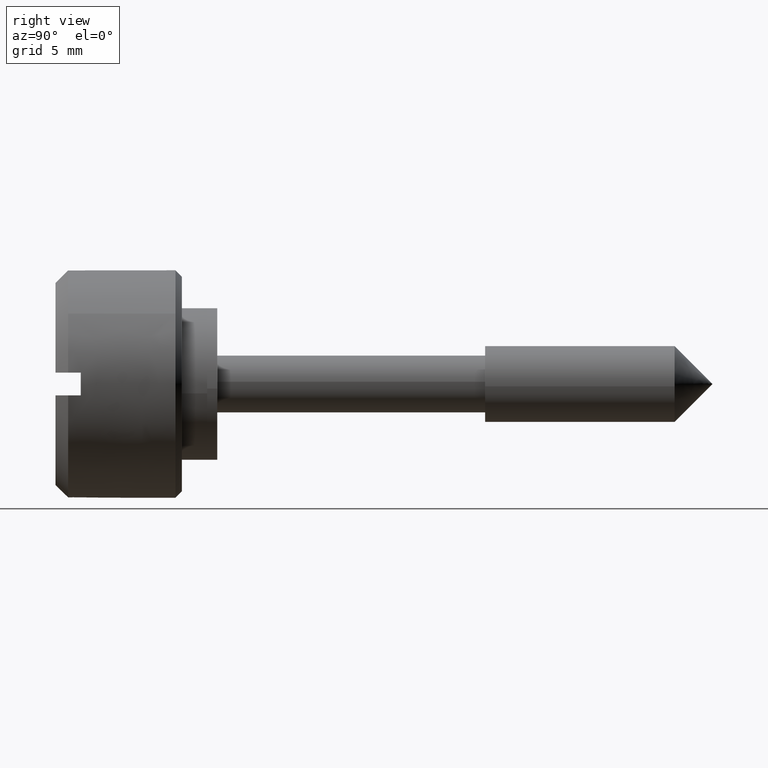
[diagram: clean part render]
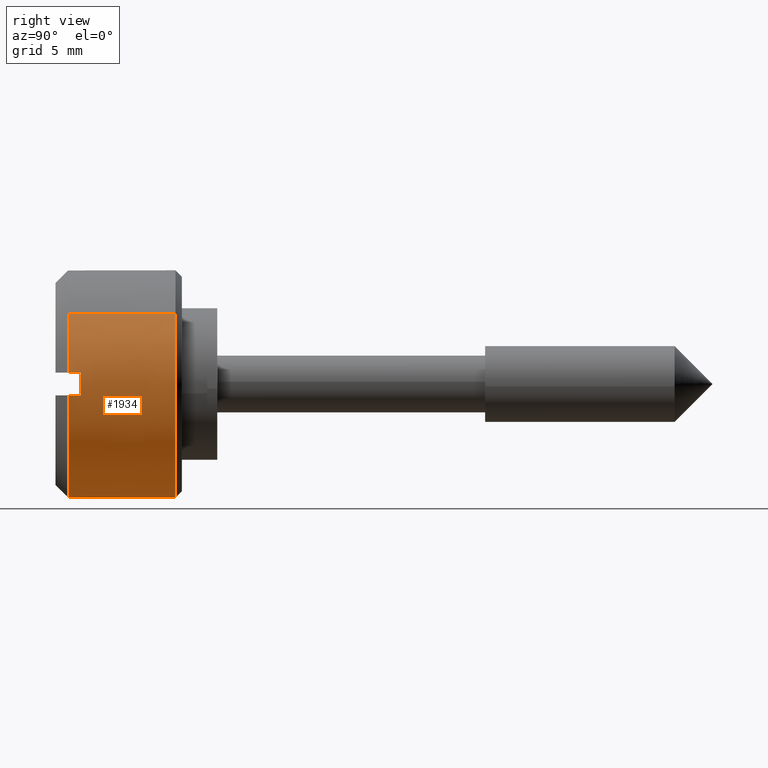
[diagram: same view with one face highlighted and labeled with its STEP entity id]
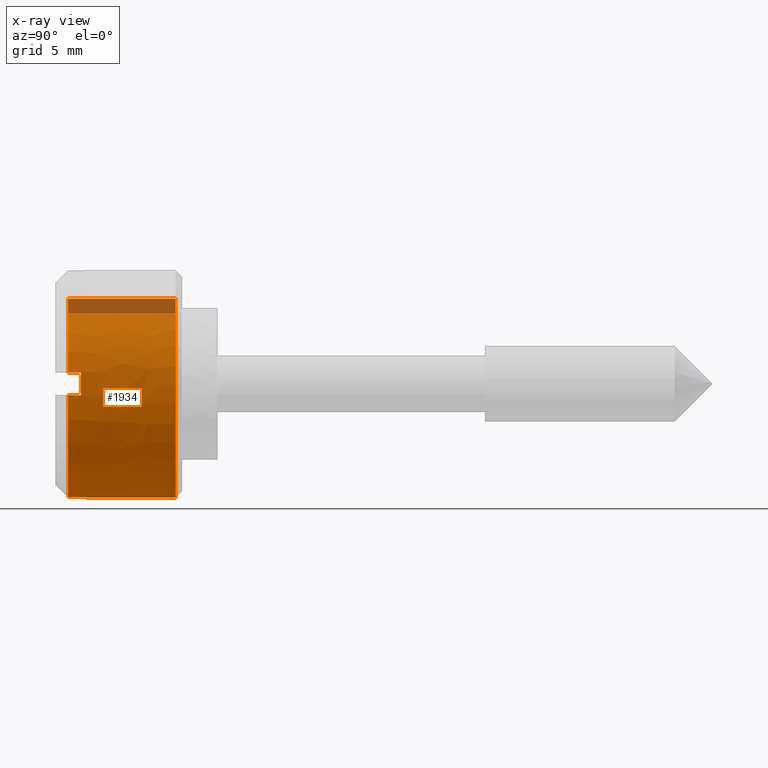
[diagram: x-ray of the same camera — body ghosted, the highlighted face saturated]
A machine part, right view. The second image highlights one B-rep face of the part: STEP entity #1934.
The next image is the same camera in x-ray: the body ghosted, the highlighted face saturated — about 8% of this face is hidden behind the body in this view.
In plain terms, the highlighted face is a freeform B-spline surface patch.
Its self-contained STEP definition (entity closure, byte-faithful):
#1409=CARTESIAN_POINT('',(-2.500000000001152,5.165861152410700,-7.369795014383618));
#1410=VERTEX_POINT('',#1409);
#1411=CARTESIAN_POINT('',(-2.500000000000060,0.0,-9.0));
#1412=VERTEX_POINT('',#1411);
#1413=CARTESIAN_POINT('',(-2.500000000001152,5.165861152410700,-7.369795014383618));
#1414=CARTESIAN_POINT('',(-2.500000000000060,2.840154707561898,-9.000000000000002));
#1415=CARTESIAN_POINT('',(-2.500000000000060,0.0,-9.0));
#1423=(BOUNDED_CURVE()B_SPLINE_CURVE(2,(#1413,#1414,#1415),.UNSPECIFIED.,.F.,.U.)B_SPLINE_CURVE_WITH_KNOTS((3,3),(0.901326273796258,1.0),.UNSPECIFIED.)CURVE()GEOMETRIC_REPRESENTATION_ITEM()RATIONAL_B_SPLINE_CURVE((0.860049271925442,0.884396538879475,1.0))REPRESENTATION_ITEM(''));
#1424=EDGE_CURVE('',#1410,#1412,#1423,.T.);
#1482=CARTESIAN_POINT('',(-2.500000000001944,8.999657307579305,-0.078538819499149));
#1483=VERTEX_POINT('',#1482);
#1489=CARTESIAN_POINT('',(-2.500000000000060,5.963579269917588,6.740602516942143));
#1490=VERTEX_POINT('',#1489);
#1491=CARTESIAN_POINT('',(-2.500000000000060,5.963579269917588,6.740602516942142));
#1492=CARTESIAN_POINT('',(-2.500000000000060,9.0,4.054205318004370));
#1493=CARTESIAN_POINT('',(-2.500000000000060,9.0,0.0));
#1494=CARTESIAN_POINT('',(-2.500000000000060,8.999999999999998,-0.039270157400074));
#1495=CARTESIAN_POINT('',(-2.500000000001944,8.999657307579305,-0.078538819499149));
#1503=(BOUNDED_CURVE()B_SPLINE_CURVE(2,(#1491,#1492,#1493,#1494,#1495),.UNSPECIFIED.,.F.,.U.)B_SPLINE_CURVE_WITH_KNOTS((3,2,3),(0.615779861978577,0.750000000000000,0.751539894335526),.UNSPECIFIED.)CURVE()GEOMETRIC_REPRESENTATION_ITEM()RATIONAL_B_SPLINE_CURVE((0.854350162732624,0.842751326981278,1.0,0.998195901565741,0.996414028099159))REPRESENTATION_ITEM(''));
#1504=EDGE_CURVE('',#1490,#1483,#1503,.T.);
#1521=CARTESIAN_POINT('',(-2.500000000000061,-7.070639771251634,5.568307931965846));
#1522=VERTEX_POINT('',#1521);
#1536=CARTESIAN_POINT('',(-2.500000000000060,0.0,-9.0));
#1537=CARTESIAN_POINT('',(-2.500000000000060,-9.0,-9.0));
#1538=CARTESIAN_POINT('',(-2.500000000000060,-9.0,0.0));
#1539=CARTESIAN_POINT('',(-2.500000000000060,-9.0,3.118404977624842));
#1540=CARTESIAN_POINT('',(-2.500000000000062,-7.070639771251636,5.568307931965846));
#1548=(BOUNDED_CURVE()B_SPLINE_CURVE(2,(#1536,#1537,#1538,#1539,#1540),.UNSPECIFIED.,.F.,.U.)B_SPLINE_CURVE_WITH_KNOTS((3,2,3),(0.0,0.250000000000000,0.357127509740917),.UNSPECIFIED.)CURVE()GEOMETRIC_REPRESENTATION_ITEM()RATIONAL_B_SPLINE_CURVE((1.0,0.707106781186547,1.0,0.874492315394053,0.856547236429575))REPRESENTATION_ITEM(''));
#1549=EDGE_CURVE('',#1412,#1522,#1548,.T.);
#1568=CARTESIAN_POINT('',(-2.500000000001944,8.999657307579305,-0.078538819499149));
#1569=CARTESIAN_POINT('',(-2.500000000000060,8.959231914329132,-4.710830061142936));
#1570=CARTESIAN_POINT('',(-2.500000000001152,5.165861152410700,-7.369795014383618));
#1578=(BOUNDED_CURVE()B_SPLINE_CURVE(2,(#1568,#1569,#1570),.UNSPECIFIED.,.F.,.U.)B_SPLINE_CURVE_WITH_KNOTS((3,3),(0.751539894335526,0.901326273796258),.UNSPECIFIED.)CURVE()GEOMETRIC_REPRESENTATION_ITEM()RATIONAL_B_SPLINE_CURVE((0.996414028099159,0.823090203821758,0.860049271925443))REPRESENTATION_ITEM(''));
#1579=EDGE_CURVE('',#1483,#1410,#1578,.T.);
#1789=CARTESIAN_POINT('',(-11.212397500000002,-7.070639198512934,5.568308659229686));
#1790=CARTESIAN_POINT('',(-11.212397500000002,-12.329090635285770,-1.108873790183274));
#1791=CARTESIAN_POINT('',(-11.212397500000000,-5.963580433941632,-6.740601487101019));
#1792=CARTESIAN_POINT('',(-11.212397500000002,0.777021053159387,-12.704181921042650));
#1793=CARTESIAN_POINT('',(-11.212397500000000,6.740601487101019,-5.963580433941632));
#1794=CARTESIAN_POINT('',(-11.212397500000002,12.704181921042650,0.777021053159387));
#1795=CARTESIAN_POINT('',(-11.212397500000000,5.963580433941632,6.740601487101019));
#1796=CARTESIAN_POINT('',(-2.282190062500059,-7.070639198512934,5.568308659229686));
#1797=CARTESIAN_POINT('',(-2.282190062500060,-12.329090635285770,-1.108873790183274));
#1798=CARTESIAN_POINT('',(-2.282190062500060,-5.963580433941632,-6.740601487101019));
#1799=CARTESIAN_POINT('',(-2.282190062500060,0.777021053159387,-12.704181921042650));
#1800=CARTESIAN_POINT('',(-2.282190062500060,6.740601487101019,-5.963580433941632));
#1801=CARTESIAN_POINT('',(-2.282190062500061,12.704181921042650,0.777021053159387));
#1802=CARTESIAN_POINT('',(-2.282190062500061,5.963580433941632,6.740601487101019));
#1810=(BOUNDED_SURFACE()B_SPLINE_SURFACE(2,1,((#1789,#1796),(#1790,#1797),(#1791,#1798),(#1792,#1799),(#1793,#1800),(#1794,#1801),(#1795,#1802)),.UNSPECIFIED.,.F.,.F.,.U.)B_SPLINE_SURFACE_WITH_KNOTS((3,2,2,3),(2,2),(0.0,14.315220715614160,29.226908961045570,44.138597206476987),(0.0,8.930207437499943),.UNSPECIFIED.)GEOMETRIC_REPRESENTATION_ITEM()RATIONAL_B_SPLINE_SURFACE(((0.977505800795127,0.977505800795127),(0.718822509939086,0.718822509939086),(1.0,1.0),(0.707106781186548,0.707106781186548),(1.0,1.0),(0.707106781186548,0.707106781186548),(1.0,1.0)))REPRESENTATION_ITEM('')SURFACE());
#1811=CARTESIAN_POINT('',(-10.999899999999990,-7.070641188374588,5.568306132501194));
#1812=VERTEX_POINT('',#1811);
#1813=CARTESIAN_POINT('',(-10.999900000000000,-8.954886933959578,0.900000000000000));
#1814=VERTEX_POINT('',#1813);
#1815=CARTESIAN_POINT('',(-10.999899999999991,-7.070641188374588,5.568306132501196));
#1816=CARTESIAN_POINT('',(-10.999900000000002,-8.692713014499425,3.508597561998565));
#1817=CARTESIAN_POINT('',(-10.999900000000000,-8.954886933959578,0.900000000000001));
#1825=(BOUNDED_CURVE()B_SPLINE_CURVE(2,(#1815,#1816,#1817),.UNSPECIFIED.,.F.,.U.)B_SPLINE_CURVE_WITH_KNOTS((3,3),(0.804778733171369,1.0),.UNSPECIFIED.)CURVE()GEOMETRIC_REPRESENTATION_ITEM()RATIONAL_B_SPLINE_CURVE((0.877012514774443,0.899117399083416,1.0))REPRESENTATION_ITEM(''));
#1826=EDGE_CURVE('',#1812,#1814,#1825,.T.);
#1827=ORIENTED_EDGE('',*,*,#1826,.T.);
#1828=CARTESIAN_POINT('',(-10.0,-8.954886933959628,0.900000000000000));
#1829=VERTEX_POINT('',#1828);
#1830=CARTESIAN_POINT('',(-10.999900000000000,-8.954886933959578,0.900000000000000));
#1831=CARTESIAN_POINT('',(-10.0,-8.954886933959628,0.900000000000000));
#1832=QUASI_UNIFORM_CURVE('',1,(#1830,#1831),.UNSPECIFIED.,.F.,.U.);
#1833=EDGE_CURVE('',#1814,#1829,#1832,.T.);
#1834=ORIENTED_EDGE('',*,*,#1833,.T.);
#1835=CARTESIAN_POINT('',(-10.0,-8.954886933959628,-0.900000000000000));
#1836=VERTEX_POINT('',#1835);
#1837=CARTESIAN_POINT('',(-10.0,-8.954886933959628,0.900000000000000));
#1838=CARTESIAN_POINT('',(-10.0,-9.045340337332908,1.626303E-015));
#1839=CARTESIAN_POINT('',(-10.0,-8.954886933959628,-0.900000000000000));
#1847=(BOUNDED_CURVE()B_SPLINE_CURVE(2,(#1837,#1838,#1839),.UNSPECIFIED.,.F.,.U.)CURVE()GEOMETRIC_REPRESENTATION_ITEM()QUASI_UNIFORM_CURVE()RATIONAL_B_SPLINE_CURVE((1.0,0.994987437106620,1.0))REPRESENTATION_ITEM(''));
#1848=EDGE_CURVE('',#1829,#1836,#1847,.T.);
#1849=ORIENTED_EDGE('',*,*,#1848,.T.);
#1850=CARTESIAN_POINT('',(-10.999900000000000,-8.954886933959578,-0.900000000000000));
#1851=VERTEX_POINT('',#1850);
#1852=CARTESIAN_POINT('',(-10.0,-8.954886933959628,-0.900000000000000));
#1853=CARTESIAN_POINT('',(-10.999900000000000,-8.954886933959578,-0.900000000000000));
#1854=QUASI_UNIFORM_CURVE('',1,(#1852,#1853),.UNSPECIFIED.,.F.,.U.);
#1855=EDGE_CURVE('',#1836,#1851,#1854,.T.);
#1856=ORIENTED_EDGE('',*,*,#1855,.T.);
#1857=CARTESIAN_POINT('',(-10.999900000000000,8.954886933959578,-0.900000000000000));
#1858=VERTEX_POINT('',#1857);
#1859=CARTESIAN_POINT('',(-10.999900000000000,-8.954886933959578,-0.899999999999998));
#1860=CARTESIAN_POINT('',(-10.999900000000000,-8.140806303599618,-9.0));
#1861=CARTESIAN_POINT('',(-10.999900000000000,0.0,-9.0));
#1862=CARTESIAN_POINT('',(-10.999900000000000,8.140806303599614,-9.0));
#1863=CARTESIAN_POINT('',(-10.999900000000000,8.954886933959578,-0.900000000000002));
#1871=(BOUNDED_CURVE()B_SPLINE_CURVE(2,(#1859,#1860,#1861,#1862,#1863),.UNSPECIFIED.,.F.,.U.)B_SPLINE_CURVE_WITH_KNOTS((3,2,3),(0.0,0.500000000000000,1.0),.UNSPECIFIED.)CURVE()GEOMETRIC_REPRESENTATION_ITEM()RATIONAL_B_SPLINE_CURVE((1.0,0.741619848709566,1.0,0.741619848709566,1.0))REPRESENTATION_ITEM(''));
#1872=EDGE_CURVE('',#1851,#1858,#1871,.T.);
#1873=ORIENTED_EDGE('',*,*,#1872,.T.);
#1874=CARTESIAN_POINT('',(-10.0,8.954886933959628,-0.900000000000000));
#1875=VERTEX_POINT('',#1874);
#1876=CARTESIAN_POINT('',(-10.999900000000000,8.954886933959578,-0.900000000000000));
#1877=CARTESIAN_POINT('',(-10.0,8.954886933959628,-0.900000000000000));
#1878=QUASI_UNIFORM_CURVE('',1,(#1876,#1877),.UNSPECIFIED.,.F.,.U.);
#1879=EDGE_CURVE('',#1858,#1875,#1878,.T.);
#1880=ORIENTED_EDGE('',*,*,#1879,.T.);
#1881=CARTESIAN_POINT('',(-10.0,8.954886933959628,0.900000000000000));
#1882=VERTEX_POINT('',#1881);
#1883=CARTESIAN_POINT('',(-10.0,8.954886933959628,-0.900000000000000));
#1884=CARTESIAN_POINT('',(-10.0,9.045340337332908,-2.602085E-015));
#1885=CARTESIAN_POINT('',(-10.0,8.954886933959628,0.900000000000000));
#1893=(BOUNDED_CURVE()B_SPLINE_CURVE(2,(#1883,#1884,#1885),.UNSPECIFIED.,.F.,.U.)CURVE()GEOMETRIC_REPRESENTATION_ITEM()QUASI_UNIFORM_CURVE()RATIONAL_B_SPLINE_CURVE((1.0,0.994987437106620,1.0))REPRESENTATION_ITEM(''));
#1894=EDGE_CURVE('',#1875,#1882,#1893,.T.);
#1895=ORIENTED_EDGE('',*,*,#1894,.T.);
#1896=CARTESIAN_POINT('',(-10.999900000000000,8.954886933959578,0.900000000000000));
#1897=VERTEX_POINT('',#1896);
#1898=CARTESIAN_POINT('',(-10.0,8.954886933959628,0.900000000000000));
#1899=CARTESIAN_POINT('',(-10.999900000000000,8.954886933959578,0.900000000000000));
#1900=QUASI_UNIFORM_CURVE('',1,(#1898,#1899),.UNSPECIFIED.,.F.,.U.);
#1901=EDGE_CURVE('',#1882,#1897,#1900,.T.);
#1902=ORIENTED_EDGE('',*,*,#1901,.T.);
#1903=CARTESIAN_POINT('',(-10.999899999999981,5.963580234905301,6.740601663193482));
#1904=VERTEX_POINT('',#1903);
#1905=CARTESIAN_POINT('',(-10.999900000000000,8.954886933959578,0.900000000000001));
#1906=CARTESIAN_POINT('',(-10.999900000000000,8.602535605502823,4.405851452623025));
#1907=CARTESIAN_POINT('',(-10.999899999999982,5.963580234905301,6.740601663193482));
#1915=(BOUNDED_CURVE()B_SPLINE_CURVE(2,(#1905,#1906,#1907),.UNSPECIFIED.,.F.,.U.)B_SPLINE_CURVE_WITH_KNOTS((3,3),(0.0,0.253570816850335),.UNSPECIFIED.)CURVE()GEOMETRIC_REPRESENTATION_ITEM()RATIONAL_B_SPLINE_CURVE((1.0,0.868964667958743,0.870836280645312))REPRESENTATION_ITEM(''));
#1916=EDGE_CURVE('',#1897,#1904,#1915,.T.);
#1917=ORIENTED_EDGE('',*,*,#1916,.T.);
#1918=CARTESIAN_POINT('',(-10.999899999999981,5.963580234905301,6.740601663193482));
#1919=CARTESIAN_POINT('',(-2.500000000000060,5.963579269917588,6.740602516942143));
#1920=QUASI_UNIFORM_CURVE('',1,(#1918,#1919),.UNSPECIFIED.,.F.,.U.);
#1921=EDGE_CURVE('',#1904,#1490,#1920,.T.);
#1922=ORIENTED_EDGE('',*,*,#1921,.T.);
#1923=ORIENTED_EDGE('',*,*,#1504,.T.);
#1924=ORIENTED_EDGE('',*,*,#1579,.T.);
#1925=ORIENTED_EDGE('',*,*,#1424,.T.);
#1926=ORIENTED_EDGE('',*,*,#1549,.T.);
#1927=CARTESIAN_POINT('',(-10.999899999999990,-7.070641188374588,5.568306132501194));
#1928=CARTESIAN_POINT('',(-2.500000000000061,-7.070639771251634,5.568307931965846));
#1929=QUASI_UNIFORM_CURVE('',1,(#1927,#1928),.UNSPECIFIED.,.F.,.U.);
#1930=EDGE_CURVE('',#1812,#1522,#1929,.T.);
#1931=ORIENTED_EDGE('',*,*,#1930,.F.);
#1932=EDGE_LOOP('',(#1827,#1834,#1849,#1856,#1873,#1880,#1895,#1902,#1917,#1922,#1923,#1924,#1925,#1926,#1931));
#1933=FACE_OUTER_BOUND('',#1932,.T.);
#1934=ADVANCED_FACE('',(#1933),#1810,.T.);